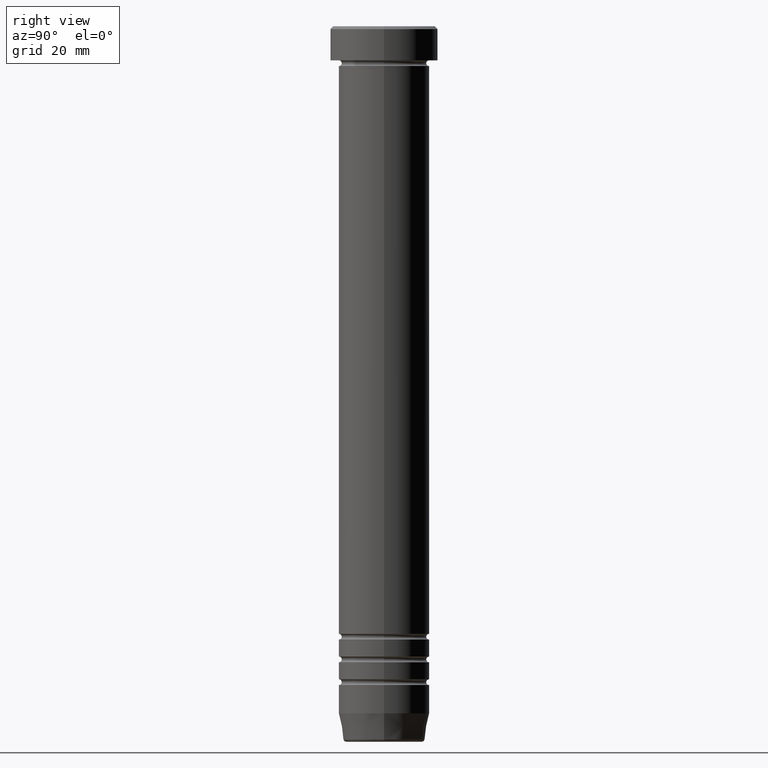
[diagram: clean part render]
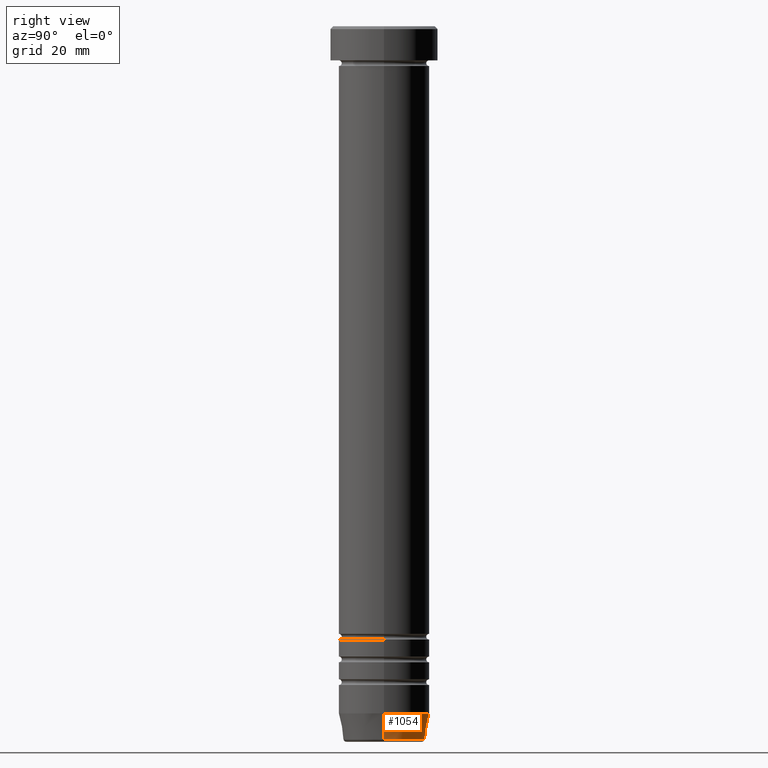
[diagram: same view with one face highlighted and labeled with its STEP entity id]
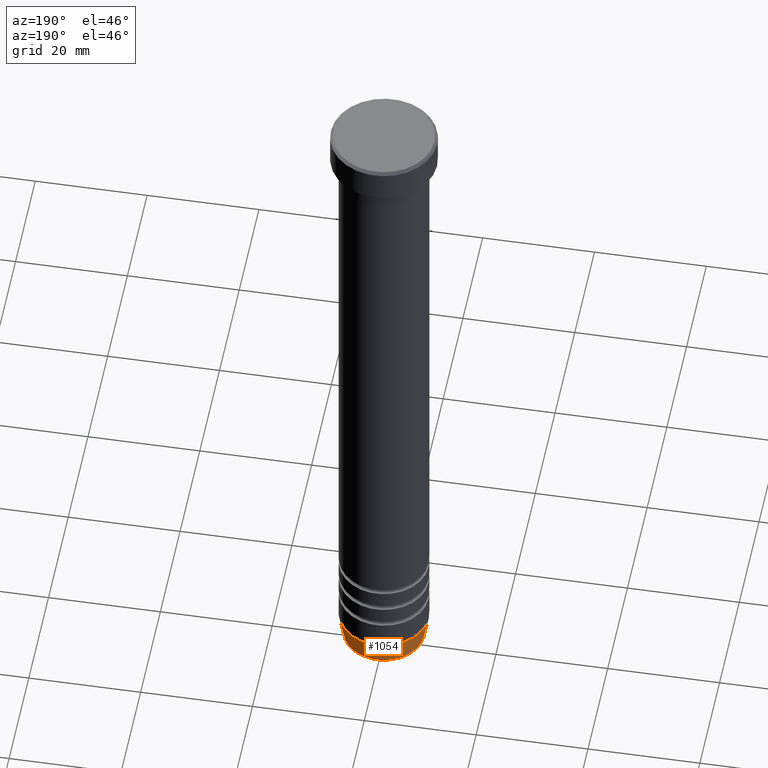
[diagram: same view with one face highlighted and labeled with its STEP entity id]
A machine part, right view. The second image highlights one B-rep face of the part: STEP entity #1054.
A second angle (auxiliary view) of the same face is appended — the face is thin or edge-on in the first view.
In plain terms, the highlighted conical surface has half-angle 10 deg.
Its self-contained STEP definition (entity closure, byte-faithful):
#12 = AXIS2_PLACEMENT_3D ( 'NONE', #487, #843, #650 ) ;
#26 = VERTEX_POINT ( 'NONE', #756 ) ;
#98 = DIRECTION ( 'NONE',  ( -1.000000000000000000, 0.000000000000000000, 0.000000000000000000 ) ) ;
#104 = ORIENTED_EDGE ( 'NONE', *, *, #736, .T. ) ;
#172 = AXIS2_PLACEMENT_3D ( 'NONE', #473, #913, #98 ) ;
#195 = DIRECTION ( 'NONE',  ( 0.1736481776669309418, 0.000000000000000000, 0.9848077530122080203 ) ) ;
#213 = CARTESIAN_POINT ( 'NONE',  ( 7.191219157375131843, 0.000000000000000000, -125.5868240888334526 ) ) ;
#227 = LINE ( 'NONE', #400, #637 ) ;
#247 = CARTESIAN_POINT ( 'NONE',  ( 7.999999999999998224, 0.000000000000000000, -121.0000000000000000 ) ) ;
#276 = LINE ( 'NONE', #707, #1088 ) ;
#294 = ORIENTED_EDGE ( 'NONE', *, *, #778, .T. ) ;
#375 = VERTEX_POINT ( 'NONE', #962 ) ;
#394 = DIRECTION ( 'NONE',  ( -0.1736481776669309418, 2.126576849575779002E-17, 0.9848077530122080203 ) ) ;
#400 = CARTESIAN_POINT ( 'NONE',  ( -7.118365096457670127, 8.717483030539125146E-16, -126.0000000000000000 ) ) ;
#473 = CARTESIAN_POINT ( 'NONE',  ( 0.000000000000000000, 0.000000000000000000, -125.5868240888334526 ) ) ;
#487 = CARTESIAN_POINT ( 'NONE',  ( 0.000000000000000000, 0.000000000000000000, -126.0000000000000000 ) ) ;
#498 = CONICAL_SURFACE ( 'NONE', #12, 7.118365096457670127, 0.1745329251994335584 ) ;
#637 = VECTOR ( 'NONE', #394, 1000.000000000000114 ) ;
#650 = DIRECTION ( 'NONE',  ( 1.000000000000000000, 0.000000000000000000, 0.000000000000000000 ) ) ;
#669 = EDGE_LOOP ( 'NONE', ( #104, #294, #1093, #865 ) ) ;
#707 = CARTESIAN_POINT ( 'NONE',  ( 7.118365096457670127, 0.000000000000000000, -126.0000000000000000 ) ) ;
#736 = EDGE_CURVE ( 'NONE', #1090, #375, #914, .T. ) ;
#756 = CARTESIAN_POINT ( 'NONE',  ( -7.999999999999998224, 9.797174393178823685E-16, -121.0000000000000000 ) ) ;
#778 = EDGE_CURVE ( 'NONE', #375, #26, #227, .T. ) ;
#826 = EDGE_CURVE ( 'NONE', #1097, #26, #1103, .T. ) ;
#837 = CARTESIAN_POINT ( 'NONE',  ( 0.000000000000000000, 0.000000000000000000, -121.0000000000000000 ) ) ;
#843 = DIRECTION ( 'NONE',  ( -0.000000000000000000, -0.000000000000000000, 1.000000000000000000 ) ) ;
#865 = ORIENTED_EDGE ( 'NONE', *, *, #880, .F. ) ;
#880 = EDGE_CURVE ( 'NONE', #1090, #1097, #276, .T. ) ;
#913 = DIRECTION ( 'NONE',  ( -0.000000000000000000, -0.000000000000000000, 1.000000000000000000 ) ) ;
#914 = CIRCLE ( 'NONE', #172, 7.191219157375131843 ) ;
#962 = CARTESIAN_POINT ( 'NONE',  ( -7.191219157375131843, 9.301938958112700013E-16, -125.5868240888334526 ) ) ;
#1021 = DIRECTION ( 'NONE',  ( -0.000000000000000000, -0.000000000000000000, 1.000000000000000000 ) ) ;
#1054 = ADVANCED_FACE ( 'NONE', ( #1105 ), #498, .T. ) ;
#1069 = AXIS2_PLACEMENT_3D ( 'NONE', #837, #1021, #1114 ) ;
#1088 = VECTOR ( 'NONE', #195, 1000.000000000000114 ) ;
#1090 = VERTEX_POINT ( 'NONE', #213 ) ;
#1093 = ORIENTED_EDGE ( 'NONE', *, *, #826, .F. ) ;
#1097 = VERTEX_POINT ( 'NONE', #247 ) ;
#1103 = CIRCLE ( 'NONE', #1069, 7.999999999999998224 ) ;
#1105 = FACE_OUTER_BOUND ( 'NONE', #669, .T. ) ;
#1114 = DIRECTION ( 'NONE',  ( 1.000000000000000000, 0.000000000000000000, 0.000000000000000000 ) ) ;